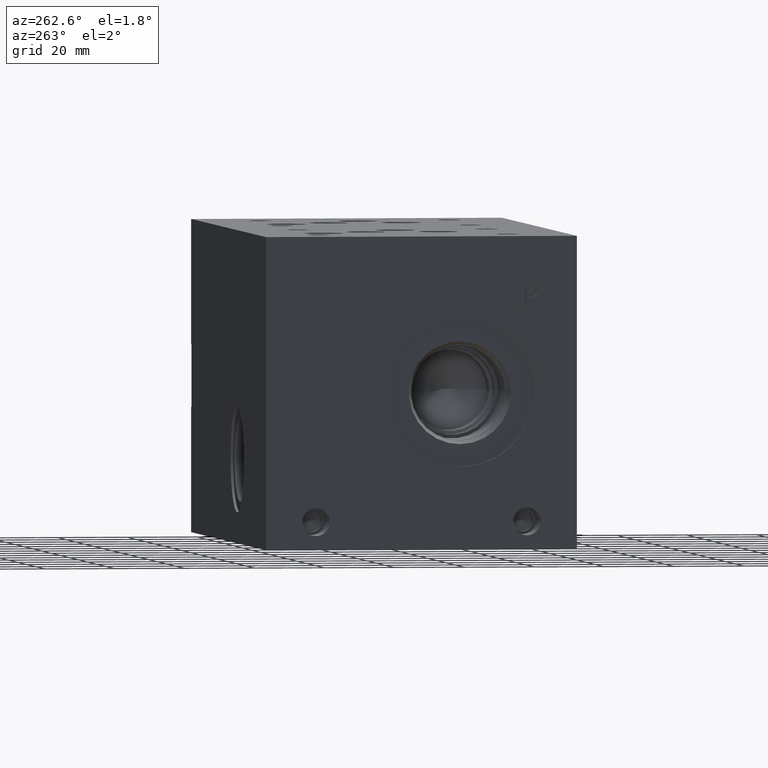
[diagram: clean part render]
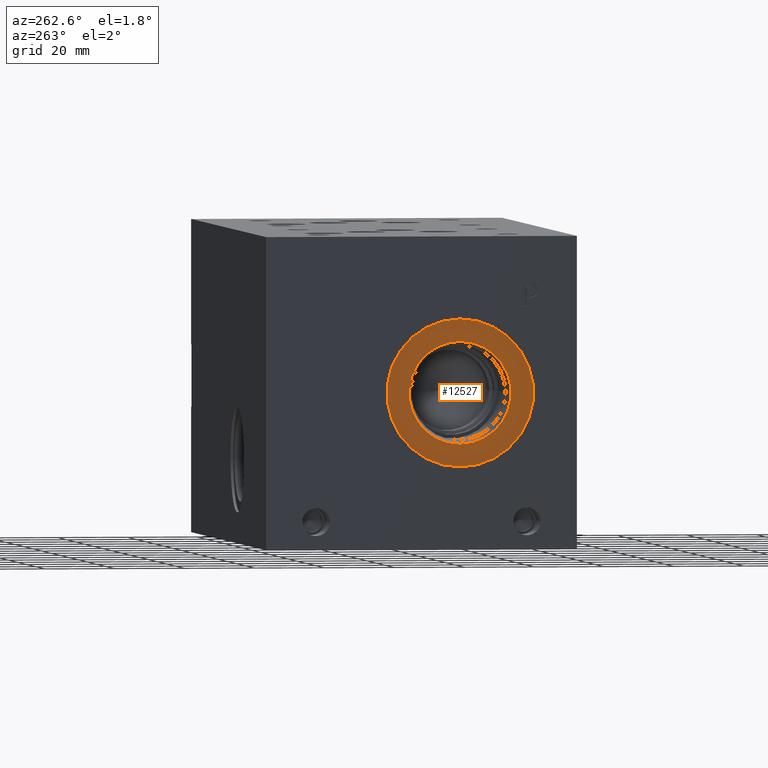
[diagram: same view with one face highlighted and labeled with its STEP entity id]
A machine part, auxiliary view. The second image highlights one B-rep face of the part: STEP entity #12527.
In plain terms, the highlighted planar face has unit normal (1, 0, 0).
Its self-contained STEP definition (entity closure, byte-faithful):
#593=CIRCLE('',#13275,21.0185);
#594=CIRCLE('',#13276,21.0185);
#595=CIRCLE('',#13278,14.5923);
#596=CIRCLE('',#13279,14.5923);
#1042=FACE_BOUND('',#2421,.T.);
#1696=FACE_OUTER_BOUND('',#2420,.T.);
#2420=EDGE_LOOP('',(#11003,#11004));
#2421=EDGE_LOOP('',(#11005,#11006));
#5845=VERTEX_POINT('',#21792);
#5846=VERTEX_POINT('',#21794);
#5847=VERTEX_POINT('',#21798);
#5848=VERTEX_POINT('',#21799);
#7584=EDGE_CURVE('',#5845,#5846,#593,.T.);
#7585=EDGE_CURVE('',#5846,#5845,#594,.T.);
#7586=EDGE_CURVE('',#5847,#5848,#595,.T.);
#7587=EDGE_CURVE('',#5848,#5847,#596,.T.);
#11003=ORIENTED_EDGE('',*,*,#7585,.F.);
#11004=ORIENTED_EDGE('',*,*,#7584,.F.);
#11005=ORIENTED_EDGE('',*,*,#7586,.T.);
#11006=ORIENTED_EDGE('',*,*,#7587,.T.);
#11415=PLANE('',#13277);
#12527=ADVANCED_FACE('',(#1696,#1042),#11415,.F.);
#13275=AXIS2_PLACEMENT_3D('',#21795,#15843,#15844);
#13276=AXIS2_PLACEMENT_3D('',#21796,#15845,#15846);
#13277=AXIS2_PLACEMENT_3D('',#21797,#15847,#15848);
#13278=AXIS2_PLACEMENT_3D('',#21800,#15849,#15850);
#13279=AXIS2_PLACEMENT_3D('',#21801,#15851,#15852);
#15843=DIRECTION('center_axis',(1.,0.,0.));
#15844=DIRECTION('ref_axis',(0.,0.,-1.));
#15845=DIRECTION('center_axis',(1.,0.,0.));
#15846=DIRECTION('ref_axis',(0.,0.,-1.));
#15847=DIRECTION('center_axis',(1.,0.,0.));
#15848=DIRECTION('ref_axis',(0.,0.,-1.));
#15849=DIRECTION('center_axis',(1.,0.,0.));
#15850=DIRECTION('ref_axis',(0.,0.,-1.));
#15851=DIRECTION('center_axis',(1.,0.,0.));
#15852=DIRECTION('ref_axis',(0.,0.,-1.));
#21792=CARTESIAN_POINT('',(0.7874,33.3248,23.4315));
#21794=CARTESIAN_POINT('',(0.7874,33.3248,65.4685));
#21795=CARTESIAN_POINT('Origin',(0.7874,33.3248,44.45));
#21796=CARTESIAN_POINT('Origin',(0.7874,33.3248,44.45));
#21797=CARTESIAN_POINT('Origin',(0.7874,33.3248,59.0423));
#21798=CARTESIAN_POINT('',(0.7874,33.3248,59.0423));
#21799=CARTESIAN_POINT('',(0.787399999999999,33.3248,29.8577));
#21800=CARTESIAN_POINT('Origin',(0.7874,33.3248,44.45));
#21801=CARTESIAN_POINT('Origin',(0.7874,33.3248,44.45));